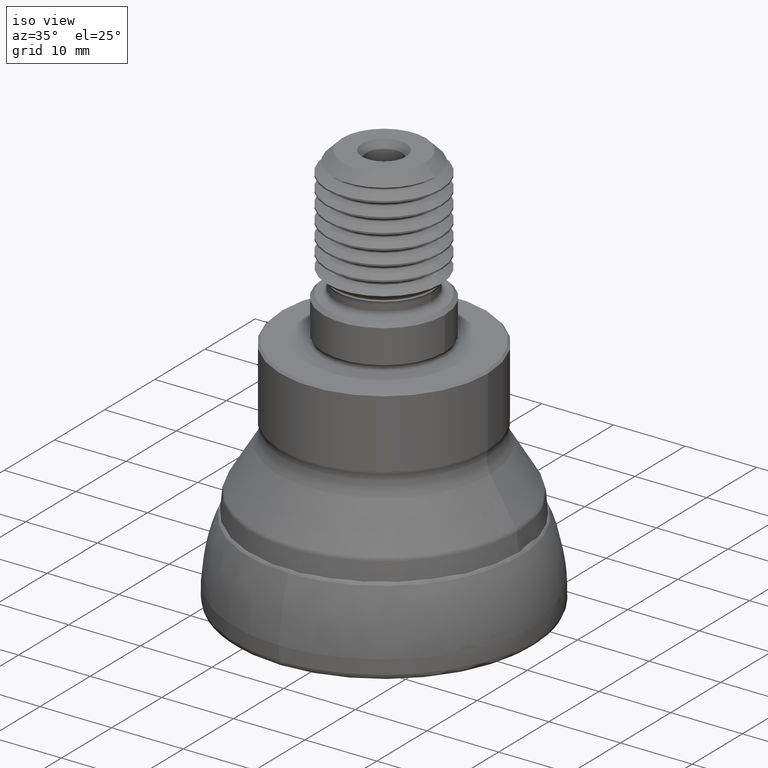
[diagram: clean part render]
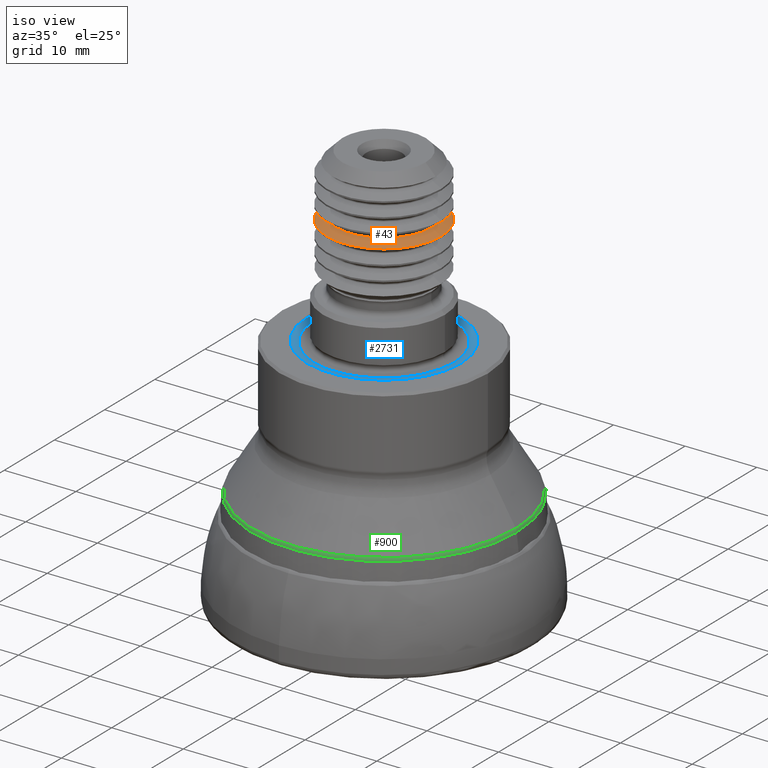
[diagram: same view with three faces highlighted in distinct colors, each labeled with its STEP entity id]
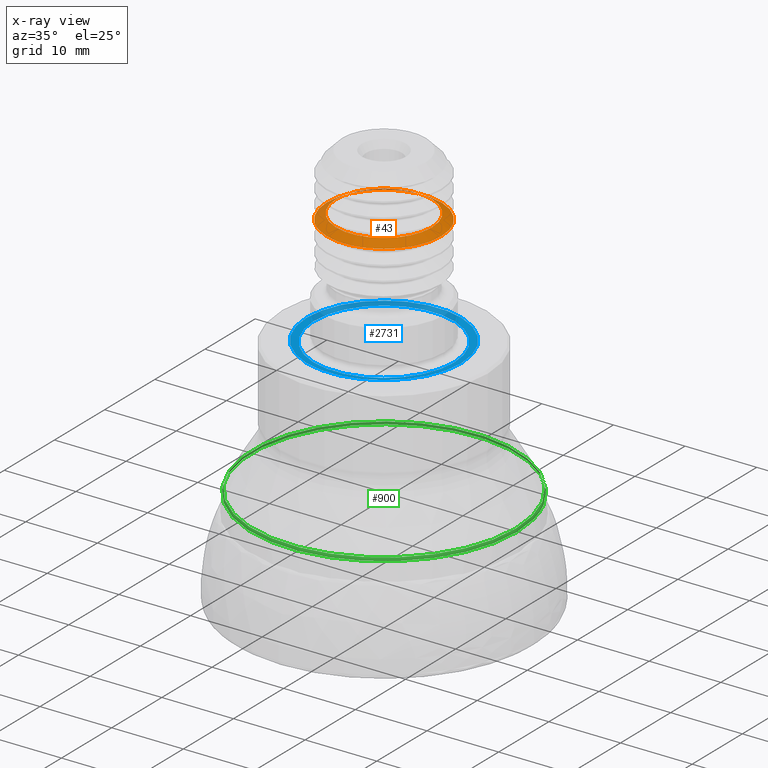
[diagram: x-ray of the same camera — body ghosted, the three highlighted faces saturated]
A machine part, iso view with three faces highlighted in distinct colors.
The next image is the same camera in x-ray (body ghosted, the three faces saturated) — at least one of them is partly hidden behind the body in this view.
Their STEP definitions:

[orange] entity #43 — the highlighted conical surface has half-angle 60 deg.
#10 = CARTESIAN_POINT ( 'NONE',  ( 6.675000000000005200, 0.0000000000000000000, -51.03094538728660700 ) ) ;
#16 = EDGE_CURVE ( 'NONE', #2792, #2792, #2196, .T. ) ;
#43 = ADVANCED_FACE ( 'NONE', ( #2114, #2016 ), #3548, .T. ) ;
#64 = DIRECTION ( 'NONE',  ( 1.000000000000000000, 0.0000000000000000000, 0.0000000000000000000 ) ) ;
#71 = DIRECTION ( 'NONE',  ( 1.000000000000000000, 0.0000000000000000000, 0.0000000000000000000 ) ) ;
#133 = DIRECTION ( 'NONE',  ( -0.0000000000000000000, -0.0000000000000000000, 1.000000000000000000 ) ) ;
#489 = DIRECTION ( 'NONE',  ( -0.0000000000000000000, -0.0000000000000000000, 1.000000000000000000 ) ) ;
#593 = VERTEX_POINT ( 'NONE', #10 ) ;
#649 = CARTESIAN_POINT ( 'NONE',  ( 0.0000000000000000000, 0.0000000000000000000, -51.03094538728660700 ) ) ;
#660 = EDGE_LOOP ( 'NONE', ( #3375 ) ) ;
#745 = CARTESIAN_POINT ( 'NONE',  ( 0.0000000000000000000, 0.0000000000000000000, -51.03094538728660700 ) ) ;
#1087 = EDGE_LOOP ( 'NONE', ( #1976 ) ) ;
#1412 = EDGE_CURVE ( 'NONE', #593, #593, #1692, .T. ) ;
#1692 = CIRCLE ( 'NONE', #2120, 6.675000000000005200 ) ;
#1840 = AXIS2_PLACEMENT_3D ( 'NONE', #745, #489, #71 ) ;
#1976 = ORIENTED_EDGE ( 'NONE', *, *, #1412, .T. ) ;
#2016 = FACE_BOUND ( 'NONE', #1087, .T. ) ;
#2114 = FACE_OUTER_BOUND ( 'NONE', #660, .T. ) ;
#2120 = AXIS2_PLACEMENT_3D ( 'NONE', #649, #2488, #64 ) ;
#2196 = CIRCLE ( 'NONE', #2584, 8.000000000000007100 ) ;
#2488 = DIRECTION ( 'NONE',  ( -0.0000000000000000000, -0.0000000000000000000, 1.000000000000000000 ) ) ;
#2584 = AXIS2_PLACEMENT_3D ( 'NONE', #3058, #133, #2823 ) ;
#2792 = VERTEX_POINT ( 'NONE', #3506 ) ;
#2823 = DIRECTION ( 'NONE',  ( 1.000000000000000000, 0.0000000000000000000, 0.0000000000000000000 ) ) ;
#3058 = CARTESIAN_POINT ( 'NONE',  ( 0.0000000000000000000, 0.0000000000000000000, -50.26595628061037500 ) ) ;
#3375 = ORIENTED_EDGE ( 'NONE', *, *, #16, .F. ) ;
#3506 = CARTESIAN_POINT ( 'NONE',  ( 8.000000000000007100, 0.0000000000000000000, -50.26595628061037500 ) ) ;
#3548 = CONICAL_SURFACE ( 'NONE', #1840, 6.675000000000005200, 1.047197551196611400 ) ;

[blue] entity #2731 — the highlighted conical surface has half-angle 80 deg.
#3 = FACE_BOUND ( 'NONE', #1715, .T. ) ;
#21 = DIRECTION ( 'NONE',  ( -0.0000000000000000000, -0.0000000000000000000, 1.000000000000000000 ) ) ;
#97 = DIRECTION ( 'NONE',  ( -1.000000000000000000, 0.0000000000000000000, 0.0000000000000000000 ) ) ;
#144 = VERTEX_POINT ( 'NONE', #1059 ) ;
#400 = ORIENTED_EDGE ( 'NONE', *, *, #1967, .T. ) ;
#584 = FACE_OUTER_BOUND ( 'NONE', #708, .T. ) ;
#626 = DIRECTION ( 'NONE',  ( -0.0000000000000000000, -0.0000000000000000000, 1.000000000000000000 ) ) ;
#708 = EDGE_LOOP ( 'NONE', ( #2273 ) ) ;
#857 = CARTESIAN_POINT ( 'NONE',  ( 0.0000000000000000000, 0.0000000000000000000, -34.82607689879512200 ) ) ;
#1059 = CARTESIAN_POINT ( 'NONE',  ( 9.784463805655732900, 0.0000000000000000000, -34.82607689879512200 ) ) ;
#1301 = DIRECTION ( 'NONE',  ( 1.000000000000000000, 0.0000000000000000000, 0.0000000000000000000 ) ) ;
#1591 = CARTESIAN_POINT ( 'NONE',  ( 10.77083072753061900, 0.0000000000000000000, -35.00000000000000700 ) ) ;
#1640 = CARTESIAN_POINT ( 'NONE',  ( 0.0000000000000000000, 0.0000000000000000000, -35.00000000000000700 ) ) ;
#1643 = VERTEX_POINT ( 'NONE', #1591 ) ;
#1715 = EDGE_LOOP ( 'NONE', ( #400 ) ) ;
#1903 = AXIS2_PLACEMENT_3D ( 'NONE', #1640, #21, #2832 ) ;
#1963 = AXIS2_PLACEMENT_3D ( 'NONE', #857, #3204, #97 ) ;
#1967 = EDGE_CURVE ( 'NONE', #144, #144, #2297, .T. ) ;
#2273 = ORIENTED_EDGE ( 'NONE', *, *, #3006, .F. ) ;
#2297 = CIRCLE ( 'NONE', #3297, 9.784463805655732900 ) ;
#2466 = CIRCLE ( 'NONE', #1903, 10.77083072753061900 ) ;
#2731 = ADVANCED_FACE ( 'NONE', ( #584, #3 ), #2955, .F. ) ;
#2832 = DIRECTION ( 'NONE',  ( 1.000000000000000000, 0.0000000000000000000, 0.0000000000000000000 ) ) ;
#2955 = CONICAL_SURFACE ( 'NONE', #1963, 9.784463805655732900, 1.396263401595473400 ) ;
#3006 = EDGE_CURVE ( 'NONE', #1643, #1643, #2466, .T. ) ;
#3204 = DIRECTION ( 'NONE',  ( 0.0000000000000000000, 0.0000000000000000000, -1.000000000000000000 ) ) ;
#3223 = CARTESIAN_POINT ( 'NONE',  ( 0.0000000000000000000, 0.0000000000000000000, -34.82607689879512200 ) ) ;
#3297 = AXIS2_PLACEMENT_3D ( 'NONE', #3223, #626, #1301 ) ;

[green] entity #900 — the highlighted toroidal blend (fillet) surface has major radius 17.5407 mm and minor (blend) radius 1 mm.
#44 = AXIS2_PLACEMENT_3D ( 'NONE', #1535, #750, #1716 ) ;
#224 = EDGE_CURVE ( 'NONE', #2877, #2877, #2266, .T. ) ;
#502 = VERTEX_POINT ( 'NONE', #3206 ) ;
#736 = DIRECTION ( 'NONE',  ( 1.000000000000000000, 0.0000000000000000000, 0.0000000000000000000 ) ) ;
#750 = DIRECTION ( 'NONE',  ( -0.0000000000000000000, -0.0000000000000000000, 1.000000000000000000 ) ) ;
#900 = ADVANCED_FACE ( 'NONE', ( #1898, #1733 ), #1992, .T. ) ;
#1152 = CIRCLE ( 'NONE', #2233, 18.53624646909687400 ) ;
#1260 = DIRECTION ( 'NONE',  ( -0.0000000000000000000, -0.0000000000000000000, 1.000000000000000000 ) ) ;
#1492 = DIRECTION ( 'NONE',  ( 1.000000000000000000, 0.0000000000000000000, 0.0000000000000000000 ) ) ;
#1535 = CARTESIAN_POINT ( 'NONE',  ( 0.0000000000000000000, 0.0000000000000000000, -16.19523027285681800 ) ) ;
#1617 = ORIENTED_EDGE ( 'NONE', *, *, #224, .T. ) ;
#1716 = DIRECTION ( 'NONE',  ( 1.000000000000000000, 0.0000000000000000000, 0.0000000000000000000 ) ) ;
#1733 = FACE_OUTER_BOUND ( 'NONE', #2592, .T. ) ;
#1752 = AXIS2_PLACEMENT_3D ( 'NONE', #1944, #1260, #736 ) ;
#1898 = FACE_OUTER_BOUND ( 'NONE', #2926, .T. ) ;
#1944 = CARTESIAN_POINT ( 'NONE',  ( 0.0000000000000000000, 0.0000000000000000000, -15.67939460386011100 ) ) ;
#1992 = TOROIDAL_SURFACE ( 'NONE', #1752, 17.54065567863097300, 0.9999999999999952300 ) ;
#2010 = CARTESIAN_POINT ( 'NONE',  ( 18.39734323112062200, 0.0000000000000000000, -16.19523027285681800 ) ) ;
#2233 = AXIS2_PLACEMENT_3D ( 'NONE', #3362, #3052, #1492 ) ;
#2266 = CIRCLE ( 'NONE', #44, 18.39734323112062200 ) ;
#2375 = ORIENTED_EDGE ( 'NONE', *, *, #2595, .F. ) ;
#2592 = EDGE_LOOP ( 'NONE', ( #1617 ) ) ;
#2595 = EDGE_CURVE ( 'NONE', #502, #502, #1152, .T. ) ;
#2877 = VERTEX_POINT ( 'NONE', #2010 ) ;
#2926 = EDGE_LOOP ( 'NONE', ( #2375 ) ) ;
#3052 = DIRECTION ( 'NONE',  ( -0.0000000000000000000, -0.0000000000000000000, 1.000000000000000000 ) ) ;
#3206 = CARTESIAN_POINT ( 'NONE',  ( 18.53624646909687400, 0.0000000000000000000, -15.77319747129725000 ) ) ;
#3362 = CARTESIAN_POINT ( 'NONE',  ( 0.0000000000000000000, 0.0000000000000000000, -15.77319747129725000 ) ) ;